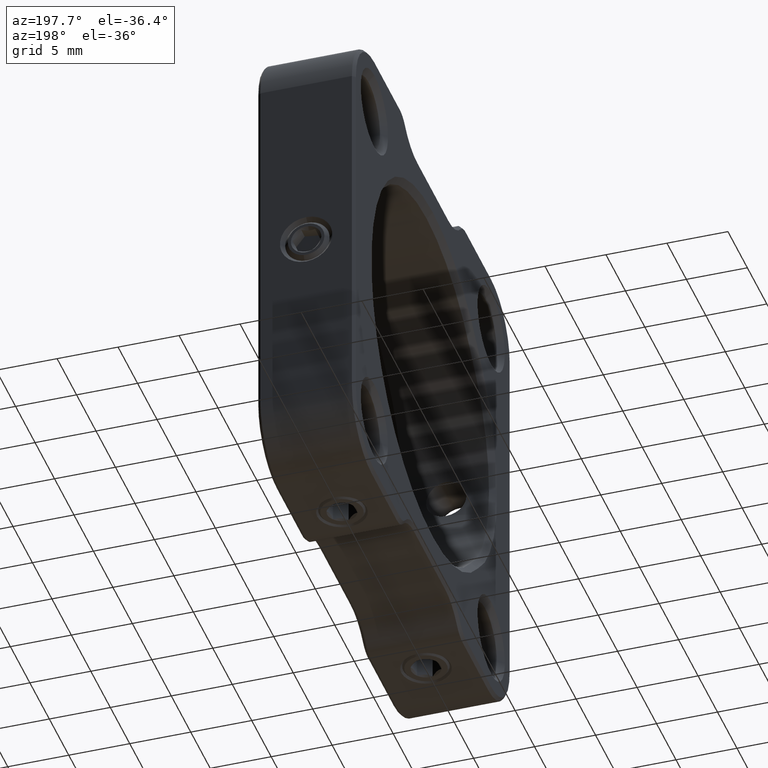
[diagram: clean part render]
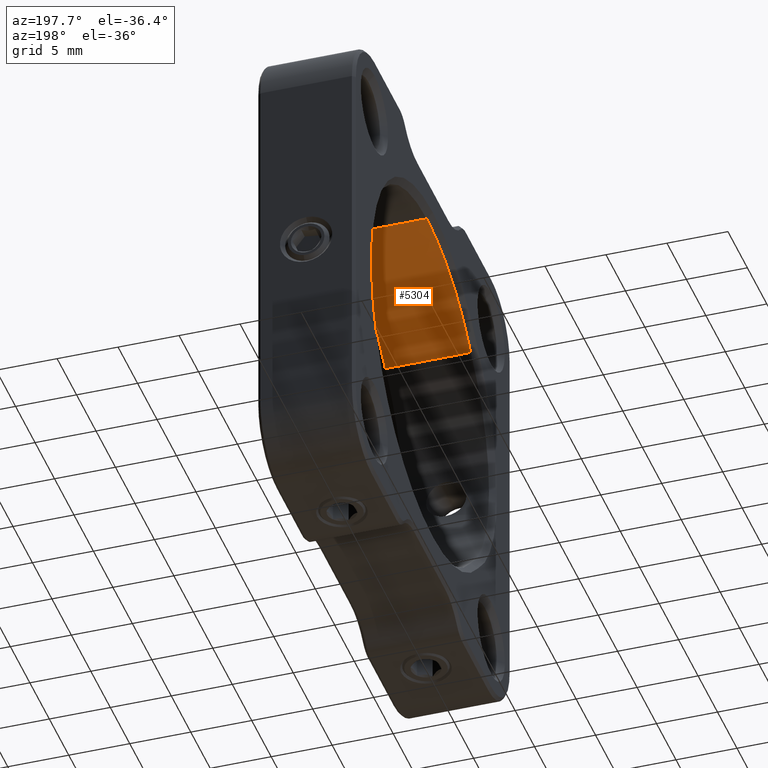
[diagram: same view with one face highlighted and labeled with its STEP entity id]
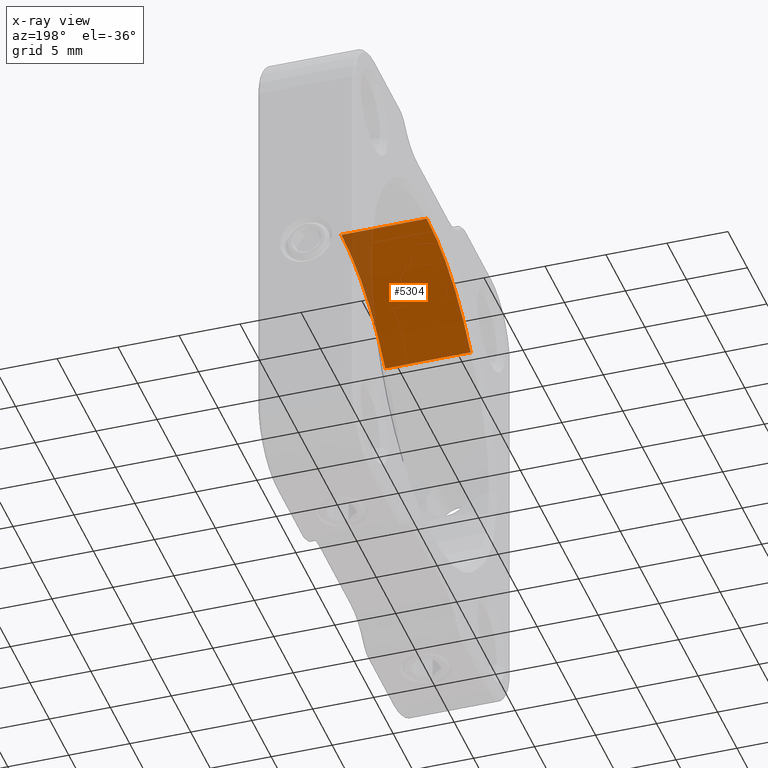
[diagram: x-ray of the same camera — body ghosted, the highlighted face saturated]
A machine part, auxiliary view. The second image highlights one B-rep face of the part: STEP entity #5304.
The next image is the same camera in x-ray: the body ghosted, the highlighted face saturated — about 10% of this face is hidden behind the body in this view.
In plain terms, the highlighted cylindrical surface (partial cylindrical patch) has radius 15.25 mm, axis along (1, -0, -0).
Its self-contained STEP definition (entity closure, byte-faithful):
#260 = DIRECTION ( 'NONE',  ( 1.000000000000000000, -0.000000000000000000, -0.000000000000000000 ) ) ;
#702 = EDGE_CURVE ( 'NONE', #7582, #4744, #5084, .T. ) ;
#1063 = EDGE_CURVE ( 'NONE', #4744, #4090, #9351, .T. ) ;
#1353 = DIRECTION ( 'NONE',  ( -1.000000000000000000, -0.000000000000000000, -0.000000000000000000 ) ) ;
#1381 = DIRECTION ( 'NONE',  ( 0.000000000000000000, 1.763161565746918702E-15, -1.000000000000000000 ) ) ;
#1680 = ORIENTED_EDGE ( 'NONE', *, *, #8010, .T. ) ;
#1993 = VECTOR ( 'NONE', #7898, 1000.000000000000000 ) ;
#2353 = EDGE_LOOP ( 'NONE', ( #4906, #1680, #3991, #3321 ) ) ;
#2613 = AXIS2_PLACEMENT_3D ( 'NONE', #6877, #8277, #3157 ) ;
#2722 = AXIS2_PLACEMENT_3D ( 'NONE', #6468, #1353, #1381 ) ;
#2786 = DIRECTION ( 'NONE',  ( 1.000000000000000000, -0.000000000000000000, -0.000000000000000000 ) ) ;
#3157 = DIRECTION ( 'NONE',  ( 0.000000000000000000, 0.000000000000000000, -1.000000000000000000 ) ) ;
#3321 = ORIENTED_EDGE ( 'NONE', *, *, #702, .T. ) ;
#3572 = DIRECTION ( 'NONE',  ( 0.000000000000000000, 0.000000000000000000, -1.000000000000000000 ) ) ;
#3991 = ORIENTED_EDGE ( 'NONE', *, *, #9418, .T. ) ;
#4046 = CIRCLE ( 'NONE', #2613, 15.25000000000000000 ) ;
#4090 = VERTEX_POINT ( 'NONE', #7470 ) ;
#4534 = CYLINDRICAL_SURFACE ( 'NONE', #4555, 15.25000000000000000 ) ;
#4555 = AXIS2_PLACEMENT_3D ( 'NONE', #7907, #2786, #3572 ) ;
#4744 = VERTEX_POINT ( 'NONE', #5427 ) ;
#4866 = CARTESIAN_POINT ( 'NONE',  ( -11.20960063692995945, 2.109301223409111525, 55.25000000000001421 ) ) ;
#4906 = ORIENTED_EDGE ( 'NONE', *, *, #1063, .T. ) ;
#5084 = LINE ( 'NONE', #8803, #1993 ) ;
#5235 = VERTEX_POINT ( 'NONE', #4866 ) ;
#5304 = ADVANCED_FACE ( 'NONE', ( #5446 ), #4534, .F. ) ;
#5392 = CARTESIAN_POINT ( 'NONE',  ( -18.70960063692994879, 2.109301223409111525, 55.25000000000001421 ) ) ;
#5427 = CARTESIAN_POINT ( 'NONE',  ( -18.20960063692994524, -9.203198776590888031, 50.22691760747100176 ) ) ;
#5446 = FACE_OUTER_BOUND ( 'NONE', #2353, .T. ) ;
#6170 = LINE ( 'NONE', #5392, #6893 ) ;
#6468 = CARTESIAN_POINT ( 'NONE',  ( -18.20960063692994524, 2.109301223409109749, 40.00000000000001421 ) ) ;
#6877 = CARTESIAN_POINT ( 'NONE',  ( -11.20960063692995945, 2.109301223409109749, 40.00000000000001421 ) ) ;
#6893 = VECTOR ( 'NONE', #260, 1000.000000000000000 ) ;
#7069 = CARTESIAN_POINT ( 'NONE',  ( -11.20960063692995945, -9.203198776590888031, 50.22691760747100176 ) ) ;
#7470 = CARTESIAN_POINT ( 'NONE',  ( -18.20960063692994524, 2.109301223409111525, 55.25000000000001421 ) ) ;
#7582 = VERTEX_POINT ( 'NONE', #7069 ) ;
#7898 = DIRECTION ( 'NONE',  ( -1.000000000000000000, 0.000000000000000000, 0.000000000000000000 ) ) ;
#7907 = CARTESIAN_POINT ( 'NONE',  ( -18.70960063692994879, 2.109301223409109749, 40.00000000000001421 ) ) ;
#8010 = EDGE_CURVE ( 'NONE', #4090, #5235, #6170, .T. ) ;
#8277 = DIRECTION ( 'NONE',  ( 1.000000000000000000, 0.000000000000000000, 0.000000000000000000 ) ) ;
#8803 = CARTESIAN_POINT ( 'NONE',  ( -14.70960063692994879, -9.203198776590888031, 50.22691760747100176 ) ) ;
#9351 = CIRCLE ( 'NONE', #2722, 15.25000000000000000 ) ;
#9418 = EDGE_CURVE ( 'NONE', #5235, #7582, #4046, .T. ) ;